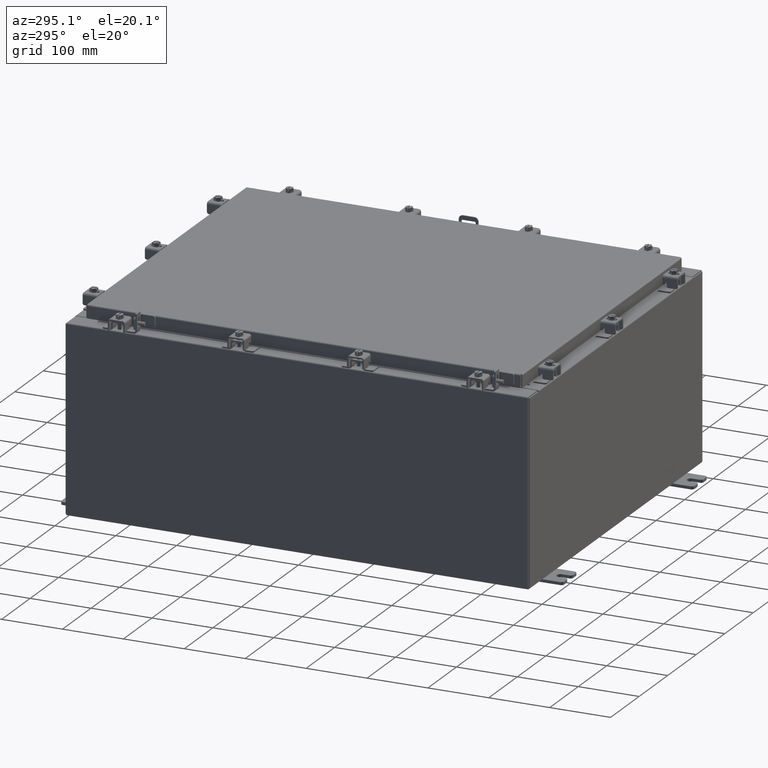
[diagram: clean part render]
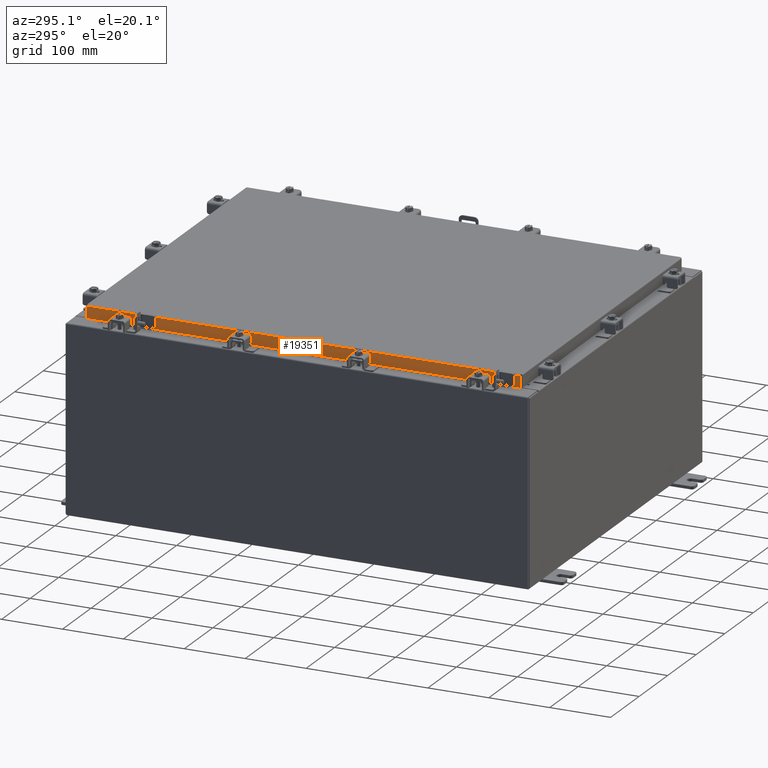
[diagram: same view with one face highlighted and labeled with its STEP entity id]
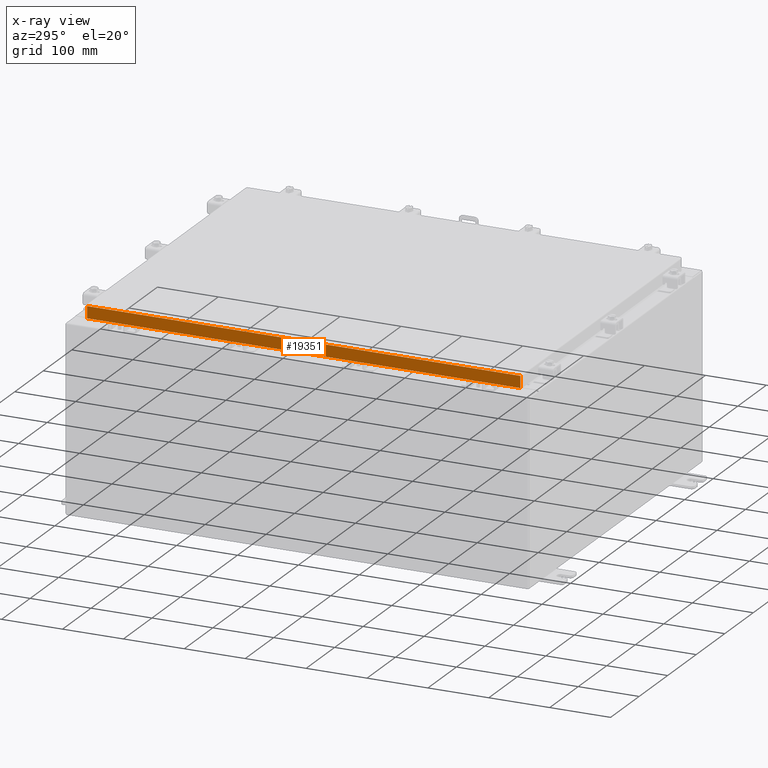
[diagram: x-ray of the same camera — body ghosted, the highlighted face saturated]
A machine part, auxiliary view. The second image highlights one B-rep face of the part: STEP entity #19351.
The next image is the same camera in x-ray: the body ghosted, the highlighted face saturated — about 0% of this face is hidden behind the body in this view.
In plain terms, the highlighted planar face has unit normal (1, 0, -0).
Its self-contained STEP definition (entity closure, byte-faithful):
#117 = CARTESIAN_POINT ( 'NONE',  ( -11.07799999999999900, -3.783035137209876100E-030, 3.148837674004379000E-014 ) ) ;
#1243 = DIRECTION ( 'NONE',  ( -2.818880942772360100E-015, 6.982962677686265900E-015, -1.000000000000000000 ) ) ;
#1443 = VECTOR ( 'NONE', #11562, 39.37007874015748100 ) ;
#1642 = CARTESIAN_POINT ( 'NONE',  ( -11.07800000000000300, -14.09399999999999600, -0.8499999999999996400 ) ) ;
#1743 = LINE ( 'NONE', #8954, #16005 ) ;
#1931 = DIRECTION ( 'NONE',  ( -2.818880942772360100E-015, 0.0000000000000000000, -1.000000000000000000 ) ) ;
#2269 = ORIENTED_EDGE ( 'NONE', *, *, #3918, .F. ) ;
#2338 = VERTEX_POINT ( 'NONE', #15291 ) ;
#3331 = VECTOR ( 'NONE', #15435, 39.37007874015748100 ) ;
#3918 = EDGE_CURVE ( 'NONE', #6200, #14253, #15140, .T. ) ;
#5441 = PLANE ( 'NONE',  #5814 ) ;
#5512 = CARTESIAN_POINT ( 'NONE',  ( -11.07799999999999900, 14.00515786437626900, -0.08770000000000007000 ) ) ;
#5632 = VERTEX_POINT ( 'NONE', #13641 ) ;
#5634 = EDGE_CURVE ( 'NONE', #2338, #12728, #13399, .T. ) ;
#5814 = AXIS2_PLACEMENT_3D ( 'NONE', #117, #12630, #1931 ) ;
#5929 = FACE_OUTER_BOUND ( 'NONE', #15610, .T. ) ;
#6200 = VERTEX_POINT ( 'NONE', #7967 ) ;
#7909 = EDGE_CURVE ( 'NONE', #14253, #2338, #21458, .T. ) ;
#7967 = CARTESIAN_POINT ( 'NONE',  ( -11.07800000000000300, -14.00515786437626200, -0.8499999999999996400 ) ) ;
#8619 = ORIENTED_EDGE ( 'NONE', *, *, #20709, .T. ) ;
#8709 = EDGE_CURVE ( 'NONE', #5632, #6200, #14129, .T. ) ;
#8954 = CARTESIAN_POINT ( 'NONE',  ( -11.07799999999999900, 14.00515786437626900, 1.292858714020875700E-013 ) ) ;
#9104 = DIRECTION ( 'NONE',  ( 3.414908049476327800E-031, -1.000000000000000000, -9.308245715024052500E-046 ) ) ;
#10184 = CARTESIAN_POINT ( 'NONE',  ( -11.07799999999999600, -13.25515786437625600, -0.8500000000000012000 ) ) ;
#11285 = DIRECTION ( 'NONE',  ( -0.0000000000000000000, 1.000000000000000000, -0.0000000000000000000 ) ) ;
#11562 = DIRECTION ( 'NONE',  ( -0.0000000000000000000, 1.000000000000000000, 1.211441035930299800E-016 ) ) ;
#11969 = ORIENTED_EDGE ( 'NONE', *, *, #8709, .F. ) ;
#12005 = VECTOR ( 'NONE', #9104, 39.37007874015748100 ) ;
#12630 = DIRECTION ( 'NONE',  ( 1.000000000000000000, 3.414908049476327800E-031, -2.818880942772360100E-015 ) ) ;
#12728 = VERTEX_POINT ( 'NONE', #14561 ) ;
#13072 = CARTESIAN_POINT ( 'NONE',  ( -11.07799999999999600, -13.25515786437626200, -0.8500000000000012000 ) ) ;
#13217 = EDGE_CURVE ( 'NONE', #19361, #5632, #16201, .T. ) ;
#13399 = LINE ( 'NONE', #20754, #3331 ) ;
#13641 = CARTESIAN_POINT ( 'NONE',  ( -11.07799999999999900, -14.00515786437626400, -0.08770000000000007000 ) ) ;
#14129 = LINE ( 'NONE', #22637, #14688 ) ;
#14253 = VERTEX_POINT ( 'NONE', #10184 ) ;
#14534 = ORIENTED_EDGE ( 'NONE', *, *, #7909, .F. ) ;
#14561 = CARTESIAN_POINT ( 'NONE',  ( -11.07800000000000300, 14.00515786437627400, -0.8499999999999963100 ) ) ;
#14688 = VECTOR ( 'NONE', #1243, 39.37007874015748100 ) ;
#15140 = LINE ( 'NONE', #1642, #1443 ) ;
#15291 = CARTESIAN_POINT ( 'NONE',  ( -11.07799999999999600, 13.25515786437627400, -0.8500000000000012000 ) ) ;
#15435 = DIRECTION ( 'NONE',  ( -0.0000000000000000000, 1.000000000000000000, 1.211441035930299800E-016 ) ) ;
#15610 = EDGE_LOOP ( 'NONE', ( #20547, #8619, #21436, #14534, #2269, #11969 ) ) ;
#16005 = VECTOR ( 'NONE', #21490, 39.37007874015748100 ) ;
#16140 = VECTOR ( 'NONE', #11285, 39.37007874015748100 ) ;
#16201 = LINE ( 'NONE', #21638, #12005 ) ;
#19351 = ADVANCED_FACE ( 'NONE', ( #5929 ), #5441, .F. ) ;
#19361 = VERTEX_POINT ( 'NONE', #5512 ) ;
#20547 = ORIENTED_EDGE ( 'NONE', *, *, #13217, .F. ) ;
#20709 = EDGE_CURVE ( 'NONE', #19361, #12728, #1743, .T. ) ;
#20754 = CARTESIAN_POINT ( 'NONE',  ( -11.07800000000000300, -14.09399999999999600, -0.8499999999999996400 ) ) ;
#21436 = ORIENTED_EDGE ( 'NONE', *, *, #5634, .F. ) ;
#21458 = LINE ( 'NONE', #13072, #16140 ) ;
#21490 = DIRECTION ( 'NONE',  ( -2.818880942772360100E-015, 6.982962677686265900E-015, -1.000000000000000000 ) ) ;
#21638 = CARTESIAN_POINT ( 'NONE',  ( -11.07799999999999900, -14.09399999999999600, -0.08770000000000007000 ) ) ;
#22637 = CARTESIAN_POINT ( 'NONE',  ( -11.07799999999999900, -14.00515786437626500, -0.07469999999999978000 ) ) ;